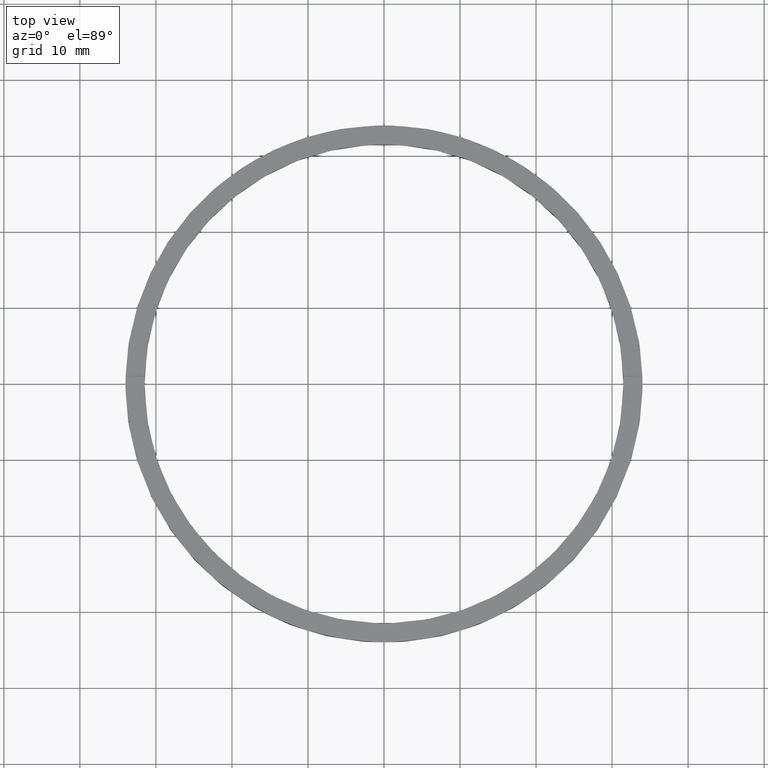
[diagram: clean part render]
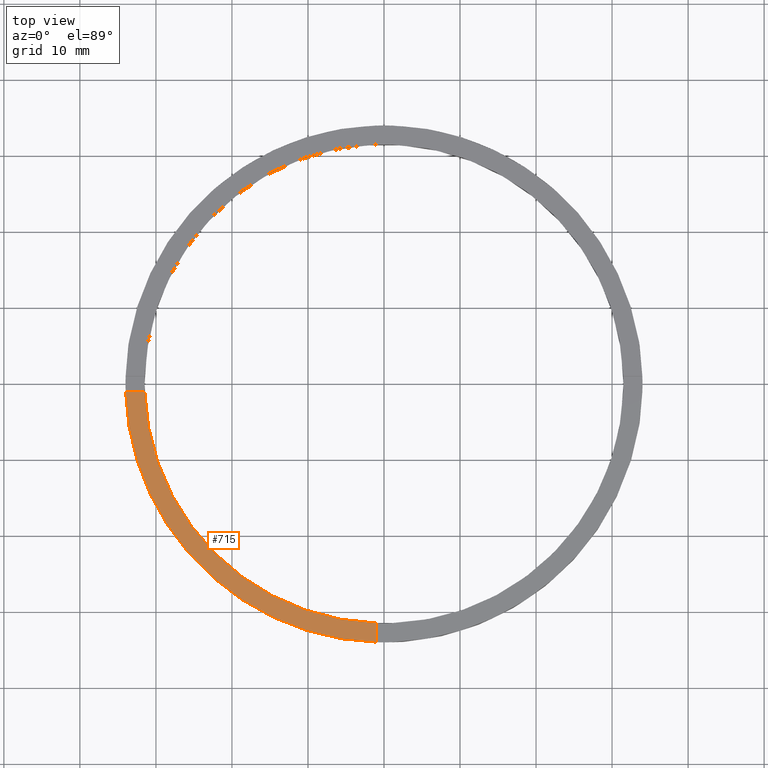
[diagram: same view with one face highlighted and labeled with its STEP entity id]
A machine part, top view. The second image highlights one B-rep face of the part: STEP entity #715.
In plain terms, the highlighted planar face has unit normal (0, 0, 1).
Its self-contained STEP definition (entity closure, byte-faithful):
#16 = CARTESIAN_POINT ( 'NONE',  ( 0.000000000000000000, 0.000000000000000000, 3.000000000000000000 ) ) ;
#37 = CARTESIAN_POINT ( 'NONE',  ( 0.000000000000000000, 0.000000000000000000, 3.000000000000000000 ) ) ;
#55 = AXIS2_PLACEMENT_3D ( 'NONE', #16, #207, #747 ) ;
#65 = AXIS2_PLACEMENT_3D ( 'NONE', #281, #114, #347 ) ;
#83 = CIRCLE ( 'NONE', #65, 31.50000000000000000 ) ;
#95 = FACE_OUTER_BOUND ( 'NONE', #542, .T. ) ;
#114 = DIRECTION ( 'NONE',  ( 0.000000000000000000, 0.000000000000000000, 1.000000000000000000 ) ) ;
#117 = VECTOR ( 'NONE', #644, 1000.000000000000000 ) ;
#157 = LINE ( 'NONE', #606, #696 ) ;
#162 = CARTESIAN_POINT ( 'NONE',  ( -1.000000000000160982, -31.48412298286232414, 3.000000000000000000 ) ) ;
#186 = CARTESIAN_POINT ( 'NONE',  ( -33.98529093593285211, -1.000000000000026423, 3.000000000000000000 ) ) ;
#207 = DIRECTION ( 'NONE',  ( 0.000000000000000000, 0.000000000000000000, 1.000000000000000000 ) ) ;
#269 = PLANE ( 'NONE',  #55 ) ;
#281 = CARTESIAN_POINT ( 'NONE',  ( 0.000000000000000000, 0.000000000000000000, 3.000000000000000000 ) ) ;
#303 = AXIS2_PLACEMENT_3D ( 'NONE', #37, #535, #676 ) ;
#328 = ORIENTED_EDGE ( 'NONE', *, *, #724, .F. ) ;
#339 = VERTEX_POINT ( 'NONE', #186 ) ;
#347 = DIRECTION ( 'NONE',  ( 1.000000000000000000, 0.000000000000000000, 0.000000000000000000 ) ) ;
#373 = LINE ( 'NONE', #564, #117 ) ;
#389 = ORIENTED_EDGE ( 'NONE', *, *, #424, .F. ) ;
#402 = ORIENTED_EDGE ( 'NONE', *, *, #554, .T. ) ;
#424 = EDGE_CURVE ( 'NONE', #504, #759, #83, .T. ) ;
#494 = VERTEX_POINT ( 'NONE', #773 ) ;
#504 = VERTEX_POINT ( 'NONE', #537 ) ;
#535 = DIRECTION ( 'NONE',  ( 0.000000000000000000, 0.000000000000000000, 1.000000000000000000 ) ) ;
#537 = CARTESIAN_POINT ( 'NONE',  ( -31.48412298286233124, -1.000000000000025757, 3.000000000000000000 ) ) ;
#542 = EDGE_LOOP ( 'NONE', ( #591, #389, #328, #402 ) ) ;
#551 = DIRECTION ( 'NONE',  ( 1.301042606982605074E-16, -1.000000000000000000, 0.000000000000000000 ) ) ;
#554 = EDGE_CURVE ( 'NONE', #339, #494, #643, .T. ) ;
#564 = CARTESIAN_POINT ( 'NONE',  ( -24.00000000000018829, -1.000000000000024425, 3.000000000000000000 ) ) ;
#591 = ORIENTED_EDGE ( 'NONE', *, *, #670, .F. ) ;
#606 = CARTESIAN_POINT ( 'NONE',  ( -1.000000000000162093, -24.00000000000018119, 3.000000000000000000 ) ) ;
#643 = CIRCLE ( 'NONE', #303, 34.00000000000000000 ) ;
#644 = DIRECTION ( 'NONE',  ( 1.000000000000000000, 1.951563910473907735E-16, -0.000000000000000000 ) ) ;
#670 = EDGE_CURVE ( 'NONE', #759, #494, #157, .T. ) ;
#676 = DIRECTION ( 'NONE',  ( 1.000000000000000000, 0.000000000000000000, 0.000000000000000000 ) ) ;
#696 = VECTOR ( 'NONE', #551, 1000.000000000000000 ) ;
#715 = ADVANCED_FACE ( 'NONE', ( #95 ), #269, .T. ) ;
#724 = EDGE_CURVE ( 'NONE', #339, #504, #373, .T. ) ;
#747 = DIRECTION ( 'NONE',  ( 1.000000000000000000, 0.000000000000000000, -0.000000000000000000 ) ) ;
#759 = VERTEX_POINT ( 'NONE', #162 ) ;
#773 = CARTESIAN_POINT ( 'NONE',  ( -1.000000000000160760, -33.98529093593285211, 3.000000000000000000 ) ) ;